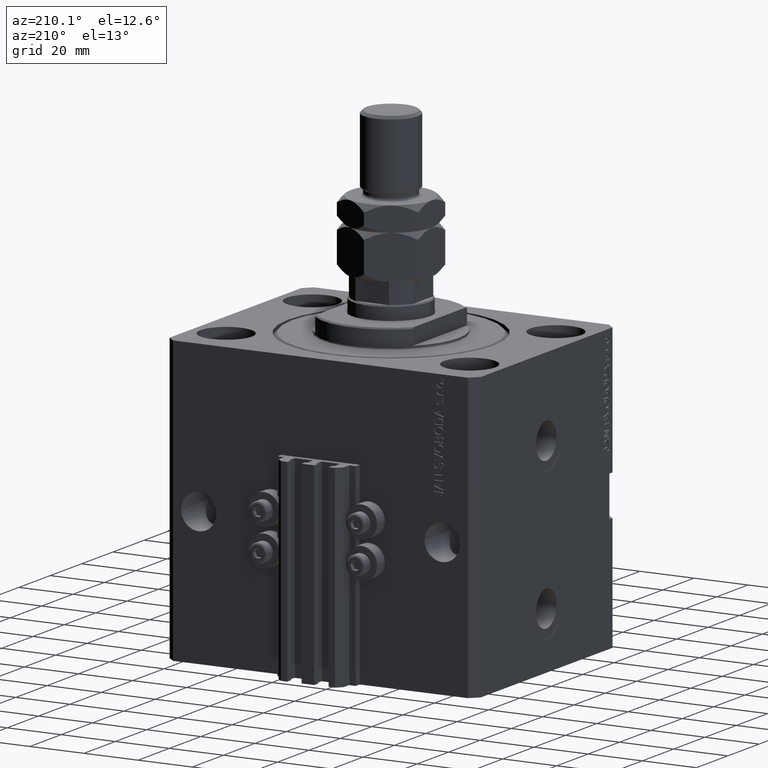
[diagram: clean part render]
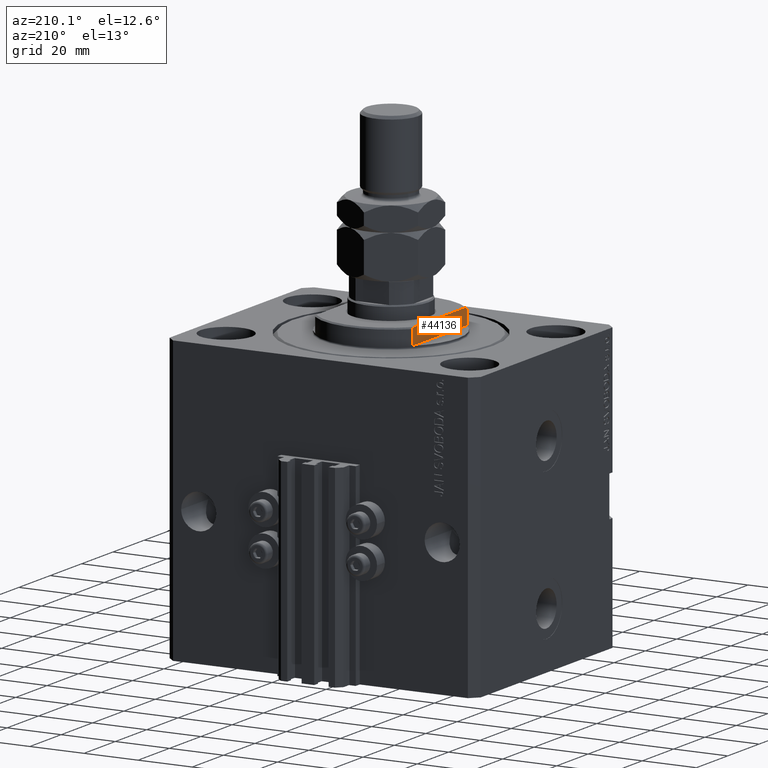
[diagram: same view with one face highlighted and labeled with its STEP entity id]
A machine part, auxiliary view. The second image highlights one B-rep face of the part: STEP entity #44136.
In plain terms, the highlighted planar face has unit normal (-1, 0, 0).
Its self-contained STEP definition (entity closure, byte-faithful):
#104 = EDGE_LOOP ( 'NONE', ( #12671, #8372, #9302, #33490, #24212, #11978 ) ) ;
#1176 = VERTEX_POINT ( 'NONE', #31269 ) ;
#1523 = DIRECTION ( 'NONE',  ( 0.000000000000000000, -1.000000000000000000, -0.000000000000000000 ) ) ;
#3031 = EDGE_CURVE ( 'NONE', #3446, #25270, #39300, .T. ) ;
#3152 = EDGE_CURVE ( 'NONE', #11875, #3446, #10250, .T. ) ;
#3446 = VERTEX_POINT ( 'NONE', #41446 ) ;
#5894 = CARTESIAN_POINT ( 'NONE',  ( 18.00000000000000000, -41.24318125460256113, -7.000000000000000000 ) ) ;
#6538 = LINE ( 'NONE', #26303, #24113 ) ;
#7892 = CARTESIAN_POINT ( 'NONE',  ( 18.00000000000000000, 16.62077013859462227, -7.000000000000000000 ) ) ;
#8372 = ORIENTED_EDGE ( 'NONE', *, *, #46176, .T. ) ;
#9302 = ORIENTED_EDGE ( 'NONE', *, *, #38915, .T. ) ;
#9611 = LINE ( 'NONE', #44282, #27802 ) ;
#10250 = LINE ( 'NONE', #5894, #17734 ) ;
#11875 = VERTEX_POINT ( 'NONE', #41238 ) ;
#11978 = ORIENTED_EDGE ( 'NONE', *, *, #49123, .F. ) ;
#12383 = LINE ( 'NONE', #40100, #41785 ) ;
#12671 = ORIENTED_EDGE ( 'NONE', *, *, #13830, .T. ) ;
#13830 = EDGE_CURVE ( 'NONE', #1176, #26671, #9611, .T. ) ;
#16731 = DIRECTION ( 'NONE',  ( 0.000000000000000000, -1.000000000000000000, -0.000000000000000000 ) ) ;
#17734 = VECTOR ( 'NONE', #1523, 1000.000000000000000 ) ;
#19098 = DIRECTION ( 'NONE',  ( 0.000000000000000000, 0.000000000000000000, -1.000000000000000000 ) ) ;
#21339 = B_SPLINE_CURVE_WITH_KNOTS ( 'NONE', 3,
 ( #47177, #27403, #46670, #7892 ),
 .UNSPECIFIED., .F., .F.,
 ( 4, 4 ),
 ( 0.04589228951331351253, 0.04678015196826826316 ),
 .UNSPECIFIED. ) ;
#21765 = VERTEX_POINT ( 'NONE', #41017 ) ;
#22140 = CARTESIAN_POINT ( 'NONE',  ( 18.00000000000000000, 17.34935157289747920, -1.000000000000000000 ) ) ;
#24113 = VECTOR ( 'NONE', #19098, 1000.000000000000000 ) ;
#24212 = ORIENTED_EDGE ( 'NONE', *, *, #3152, .F. ) ;
#25270 = VERTEX_POINT ( 'NONE', #34874 ) ;
#26303 = CARTESIAN_POINT ( 'NONE',  ( 18.00000000000000000, -17.34935157289747920, -7.000000000000000000 ) ) ;
#26671 = VERTEX_POINT ( 'NONE', #22140 ) ;
#27403 = CARTESIAN_POINT ( 'NONE',  ( 18.00000000000000000, 17.10737464676705955, -6.667925710558589181 ) ) ;
#27802 = VECTOR ( 'NONE', #41196, 1000.000000000000000 ) ;
#29593 = CARTESIAN_POINT ( 'NONE',  ( 18.00000000000000000, -41.24318125460256113, -1.000000000000000000 ) ) ;
#30859 = CARTESIAN_POINT ( 'NONE',  ( 18.00000000000000000, -16.62077013859462227, -7.000000000000000000 ) ) ;
#31097 = CARTESIAN_POINT ( 'NONE',  ( 18.00000000000000000, -17.34935157289747920, -6.499999999999958256 ) ) ;
#31269 = CARTESIAN_POINT ( 'NONE',  ( 18.00000000000000000, 17.34935157289748986, -6.499999999999965361 ) ) ;
#33435 = FACE_OUTER_BOUND ( 'NONE', #104, .T. ) ;
#33490 = ORIENTED_EDGE ( 'NONE', *, *, #3031, .F. ) ;
#34874 = CARTESIAN_POINT ( 'NONE',  ( 18.00000000000000000, -17.34935157289747920, -6.499999999999958256 ) ) ;
#38797 = CARTESIAN_POINT ( 'NONE',  ( 18.00000000000000000, -17.10749533145902745, -6.667841958512572553 ) ) ;
#38915 = EDGE_CURVE ( 'NONE', #21765, #25270, #6538, .T. ) ;
#39300 = B_SPLINE_CURVE_WITH_KNOTS ( 'NONE', 3,
 ( #30859, #46495, #38797, #31097 ),
 .UNSPECIFIED., .F., .F.,
 ( 4, 4 ),
 ( 0.08262823419570360095, 0.08350100171199342780 ),
 .UNSPECIFIED. ) ;
#40100 = CARTESIAN_POINT ( 'NONE',  ( 18.00000000000000000, -41.24318125460256113, -1.000000000000000000 ) ) ;
#41017 = CARTESIAN_POINT ( 'NONE',  ( 18.00000000000000000, -17.34935157289747920, -1.000000000000000000 ) ) ;
#41196 = DIRECTION ( 'NONE',  ( -0.000000000000000000, -0.000000000000000000, 1.000000000000000000 ) ) ;
#41238 = CARTESIAN_POINT ( 'NONE',  ( 18.00000000000000000, 16.62077013859462227, -7.000000000000000000 ) ) ;
#41446 = CARTESIAN_POINT ( 'NONE',  ( 18.00000000000000000, -16.62077013859462227, -7.000000000000000000 ) ) ;
#41785 = VECTOR ( 'NONE', #16731, 1000.000000000000000 ) ;
#41895 = DIRECTION ( 'NONE',  ( 1.000000000000000000, 0.000000000000000000, -0.000000000000000000 ) ) ;
#43985 = AXIS2_PLACEMENT_3D ( 'NONE', #29593, #41895, #45747 ) ;
#44136 = ADVANCED_FACE ( 'NONE', ( #33435 ), #49358, .T. ) ;
#44282 = CARTESIAN_POINT ( 'NONE',  ( 18.00000000000000000, 17.34935157289747920, -7.000000000000000000 ) ) ;
#45747 = DIRECTION ( 'NONE',  ( -0.000000000000000000, 0.000000000000000000, -1.000000000000000000 ) ) ;
#46176 = EDGE_CURVE ( 'NONE', #26671, #21765, #12383, .T. ) ;
#46495 = CARTESIAN_POINT ( 'NONE',  ( 18.00000000000000000, -16.86466398118529497, -6.834542714452326528 ) ) ;
#46670 = CARTESIAN_POINT ( 'NONE',  ( 18.00000000000000000, 16.86453887646376515, -6.834627585342920142 ) ) ;
#47177 = CARTESIAN_POINT ( 'NONE',  ( 18.00000000000000000, 17.34935157289748986, -6.499999999999965361 ) ) ;
#49123 = EDGE_CURVE ( 'NONE', #1176, #11875, #21339, .T. ) ;
#49358 = PLANE ( 'NONE',  #43985 ) ;